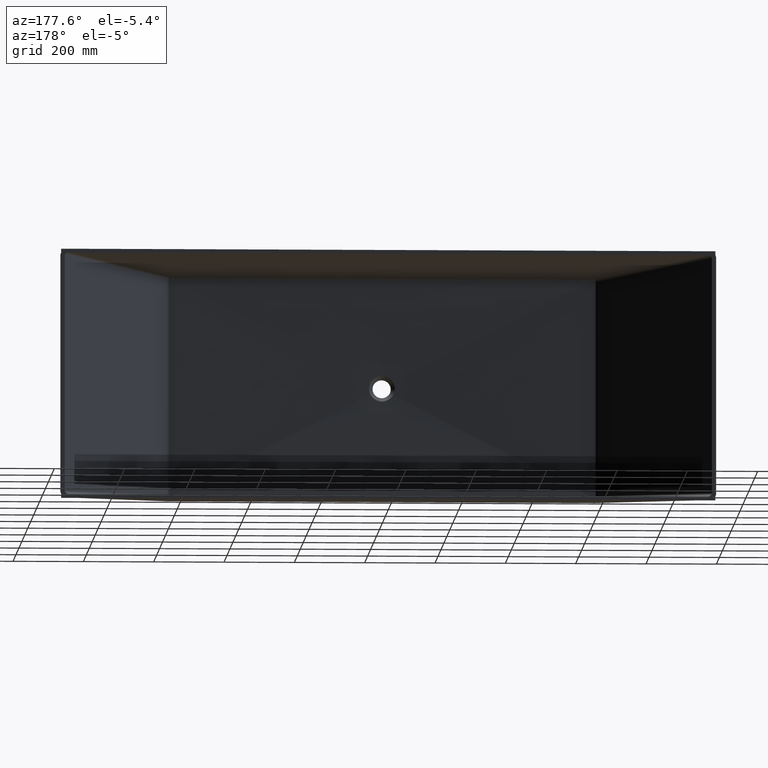
[diagram: clean part render]
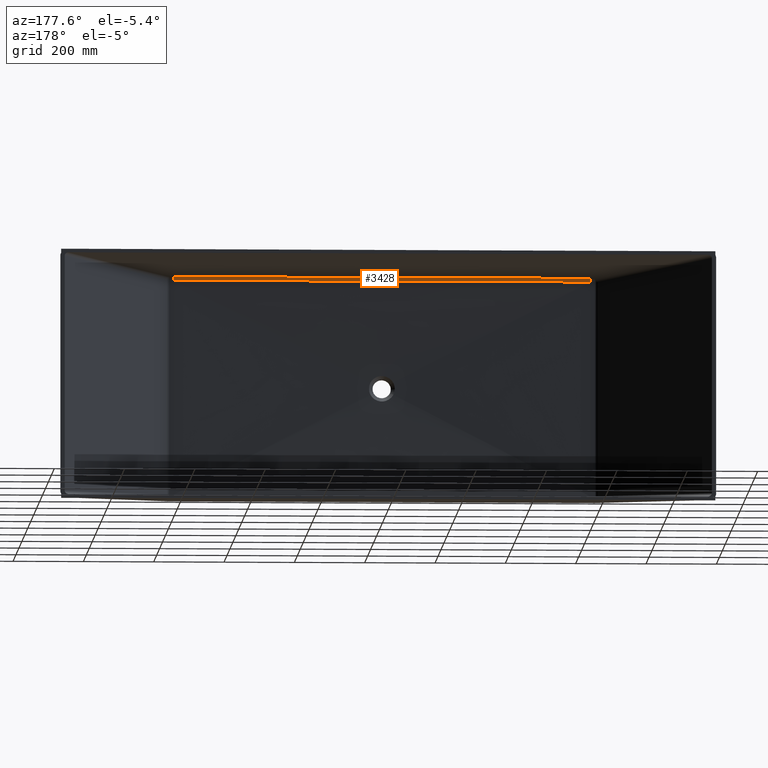
[diagram: same view with one face highlighted and labeled with its STEP entity id]
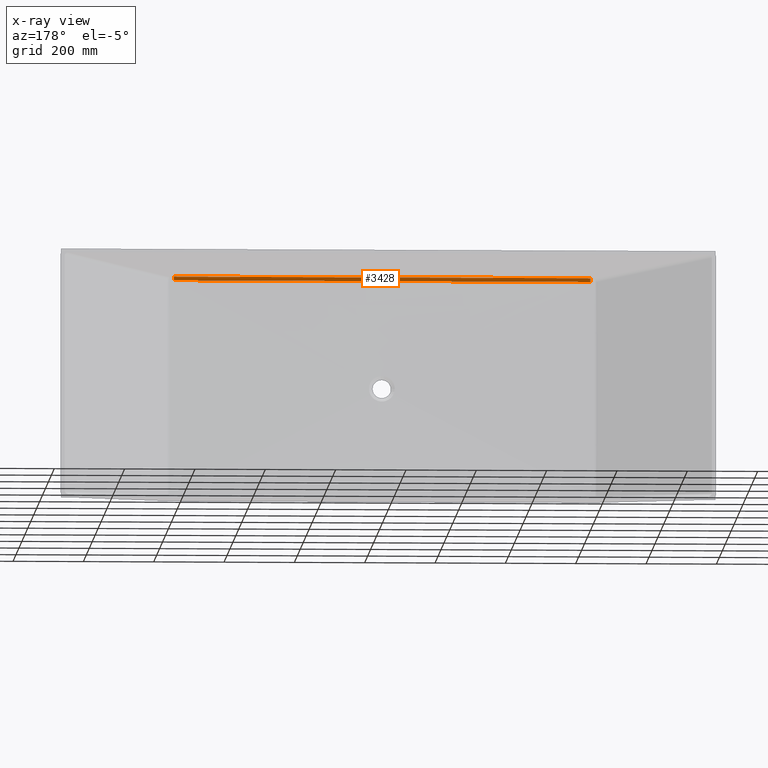
[diagram: x-ray of the same camera — body ghosted, the highlighted face saturated]
A machine part, auxiliary view. The second image highlights one B-rep face of the part: STEP entity #3428.
The next image is the same camera in x-ray: the body ghosted, the highlighted face saturated — about 0% of this face is hidden behind the body in this view.
In plain terms, the highlighted face is a freeform B-spline surface patch.
Its self-contained STEP definition (entity closure, byte-faithful):
#13 = CARTESIAN_POINT ( 'NONE',  ( 592.2875355145996500, -423.0502434397071700, 308.1545570712363000 ) ) ;
#41 = CARTESIAN_POINT ( 'NONE',  ( 599.3992717241939100, -414.0692122107927300, 315.6333892049083300 ) ) ;
#43 = CARTESIAN_POINT ( 'NONE',  ( 592.2902253384936600, -423.2501045533896300, 307.2687150884824000 ) ) ;
#49 = CARTESIAN_POINT ( 'NONE',  ( 599.3996350662886200, -423.0007088836803200, 314.9999497245617000 ) ) ;
#53 = CARTESIAN_POINT ( 'NONE',  ( 599.3996750502633400, -423.3539829347628800, 306.0529906898778400 ) ) ;
#63 = CARTESIAN_POINT ( 'NONE',  ( 399.5995145476632000, -414.0772995840378600, 315.6328156323377200 ) ) ;
#68 = CARTESIAN_POINT ( 'NONE',  ( 399.6820283183525400, -423.0005159665332100, 314.9999633333082400 ) ) ;
#77 = CARTESIAN_POINT ( 'NONE',  ( 399.5999914207068900, -423.3617067454130700, 306.0616245431969600 ) ) ;
#78 = CARTESIAN_POINT ( 'NONE',  ( 592.2914806022187100, -423.3300100390993600, 306.6668858443011300 ) ) ;
#82 = CARTESIAN_POINT ( 'NONE',  ( 199.7997573688288100, -414.0867623741400500, 315.6321445124722800 ) ) ;
#97 = CARTESIAN_POINT ( 'NONE',  ( 199.8000121801432300, -423.0000000110911200, 314.9999999889088800 ) ) ;
#100 = CARTESIAN_POINT ( 'NONE',  ( 199.8000407358737800, -423.3707100165772800, 306.0720671007626900 ) ) ;
#111 = CARTESIAN_POINT ( 'NONE',  ( -199.7997573688289800, -414.0867623623217400, 315.6321445133104900 ) ) ;
#112 = CARTESIAN_POINT ( 'NONE',  ( 592.2921744901834700, -423.3542579157514200, 306.0532980438658800 ) ) ;
#115 = CARTESIAN_POINT ( 'NONE',  ( -199.8000121801433700, -422.9999999889088300, 315.0000000110911200 ) ) ;
#128 = CARTESIAN_POINT ( 'NONE',  ( -199.8000407358739500, -423.3707100165581800, 306.0720671012224400 ) ) ;
#136 = CARTESIAN_POINT ( 'NONE',  ( -399.5995145476206900, -414.0772995631735400, 315.6328156338173000 ) ) ;
#151 = CARTESIAN_POINT ( 'NONE',  ( -399.6820283183100700, -423.0005159942497200, 314.9999634109138400 ) ) ;
#159 = CARTESIAN_POINT ( 'NONE',  ( -399.5999914206659600, -423.3617067449502000, 306.0616245549201200 ) ) ;
#186 = CARTESIAN_POINT ( 'NONE',  ( -599.3992717241740100, -414.0692122107927300, 315.6333892049081600 ) ) ;
#203 = ORIENTED_EDGE ( 'NONE', *, *, #1086, .T. ) ;
#211 = CARTESIAN_POINT ( 'NONE',  ( -599.3996750502434500, -423.3539829347628800, 306.0529906898777300 ) ) ;
#351 = CARTESIAN_POINT ( 'NONE',  ( 592.2865035446360500, -422.9702026066239000, 308.4470024458679500 ) ) ;
#827 = CARTESIAN_POINT ( 'NONE',  ( -599.3996350662686200, -423.0007088836800300, 314.9999497245614700 ) ) ;
#1086 = EDGE_CURVE ( 'NONE', #7006, #5356, #5069, .T. ) ;
#1122 = CARTESIAN_POINT ( 'NONE',  ( 592.1901443795183000, -414.0695042601208200, 315.6333684921899000 ) ) ;
#1248 = CARTESIAN_POINT ( 'NONE',  ( 592.2921744901834700, -423.3542579157514200, 306.0532980438658800 ) ) ;
#1275 = CARTESIAN_POINT ( 'NONE',  ( -394.8614497871554900, -423.3619037750318600, 306.0618196741922900 ) ) ;
#1285 = CARTESIAN_POINT ( 'NONE',  ( 394.8614497685199500, -423.3619037750318100, 306.0618196741927500 ) ) ;
#1315 = CARTESIAN_POINT ( 'NONE',  ( 505.0149746602886600, -414.0730390188823000, 315.6331178000792200 ) ) ;
#1381 = CARTESIAN_POINT ( 'NONE',  ( 417.8398049493720200, -414.0767967430808200, 315.6328512948169300 ) ) ;
#1414 = CARTESIAN_POINT ( 'NONE',  ( 330.6646352156019500, -414.0799546041483300, 315.6326273330390700 ) ) ;
#1523 = EDGE_LOOP ( 'NONE', ( #1937, #203, #2146, #8145 ) ) ;
#1586 = CARTESIAN_POINT ( 'NONE',  ( -592.2921744901636900, -423.3542579157514200, 306.0532980438658200 ) ) ;
#1699 = CARTESIAN_POINT ( 'NONE',  ( -592.1901443795268300, -414.0695042601208200, 315.6333684921899600 ) ) ;
#1758 = CARTESIAN_POINT ( 'NONE',  ( 592.2921744901834700, -423.3542579157514200, 306.0532980438658800 ) ) ;
#1799 = CARTESIAN_POINT ( 'NONE',  ( -220.4430901924269800, -414.0839473044420600, 315.6323441628054500 ) ) ;
#1865 = CARTESIAN_POINT ( 'NONE',  ( 220.4430901929374600, -414.0839473044422300, 315.6323441628055100 ) ) ;
#1906 = CARTESIAN_POINT ( 'NONE',  ( -5.912365160427438000E-014, -414.0867623682308900, 315.6321445128913300 ) ) ;
#1924 = CARTESIAN_POINT ( 'NONE',  ( 110.2215450953446200, -414.0867623682308900, 315.6321445128913300 ) ) ;
#1937 = ORIENTED_EDGE ( 'NONE', *, *, #7313, .F. ) ;
#1976 = CARTESIAN_POINT ( 'NONE',  ( -110.2215450950894400, -414.0867623682308900, 315.6321445128913300 ) ) ;
#2146 = ORIENTED_EDGE ( 'NONE', *, *, #3367, .T. ) ;
#2243 = CARTESIAN_POINT ( 'NONE',  ( -2.029260648406250300E-007, -423.3795162581031400, 306.0823145277922200 ) ) ;
#2952 = VERTEX_POINT ( 'NONE', #5053 ) ;
#3179 = CARTESIAN_POINT ( 'NONE',  ( 592.2326499016628500, -418.1377231491702000, 314.4653617295544400 ) ) ;
#3367 = EDGE_CURVE ( 'NONE', #5356, #7019, #8213, .T. ) ;
#3428 = ADVANCED_FACE ( 'NONE', ( #8181 ), #6530, .F. ) ;
#3619 = CARTESIAN_POINT ( 'NONE',  ( -592.1901443795268300, -414.0695042601208200, 315.6333684921899600 ) ) ;
#3629 = CARTESIAN_POINT ( 'NONE',  ( -592.1932513826318400, -414.3714129198076500, 315.6119565305105000 ) ) ;
#3632 = CARTESIAN_POINT ( 'NONE',  ( -592.1964223851206300, -414.6785498463817100, 315.5761338879818800 ) ) ;
#3662 = CARTESIAN_POINT ( 'NONE',  ( -592.2026944403894500, -415.2840274289018800, 315.4767821584208000 ) ) ;
#3676 = CARTESIAN_POINT ( 'NONE',  ( -592.2058118902488100, -415.5839654798277300, 315.4131966506925600 ) ) ;
#3687 = CARTESIAN_POINT ( 'NONE',  ( -592.2150186727524200, -416.4668141934828300, 315.1836705945477200 ) ) ;
#3690 = CARTESIAN_POINT ( 'NONE',  ( -592.2209998810462800, -417.0364005711500700, 314.9787424199222400 ) ) ;
#3704 = CARTESIAN_POINT ( 'NONE',  ( -592.2326499016737700, -418.1377231491106300, 314.4653617295871300 ) ) ;
#3710 = CARTESIAN_POINT ( 'NONE',  ( -592.2383481865152800, -418.6721172102338600, 314.1538014906723800 ) ) ;
#3727 = CARTESIAN_POINT ( 'NONE',  ( -592.2489784577682000, -419.6603088821092900, 313.4494574035249500 ) ) ;
#3730 = CARTESIAN_POINT ( 'NONE',  ( -592.2539675133572200, -420.1195520875036800, 313.0548724058476800 ) ) ;
#3740 = CARTESIAN_POINT ( 'NONE',  ( -592.2609559643448200, -420.7554952446343500, 312.3985933557629600 ) ) ;
#3756 = CARTESIAN_POINT ( 'NONE',  ( -592.2632127800677600, -420.9595248485930500, 312.1677814153020400 ) ) ;
#3758 = CARTESIAN_POINT ( 'NONE',  ( -592.2674798874168100, -421.3425135798427700, 311.6921262670946900 ) ) ;
#3768 = CARTESIAN_POINT ( 'NONE',  ( -592.2694955218436200, -421.5219739482204800, 311.4469935517062700 ) ) ;
#3773 = CARTESIAN_POINT ( 'NONE',  ( -592.2751969869987100, -422.0251020910339400, 310.6901953781729200 ) ) ;
#3788 = CARTESIAN_POINT ( 'NONE',  ( -592.2785402475810800, -422.3138095921791500, 310.1573075671818200 ) ) ;
#3794 = CARTESIAN_POINT ( 'NONE',  ( -592.2828495215617300, -422.6748604965110900, 309.3142625482308300 ) ) ;
#3804 = CARTESIAN_POINT ( 'NONE',  ( -592.2841644621506700, -422.7828419477410800, 309.0261300735248300 ) ) ;
#3809 = CARTESIAN_POINT ( 'NONE',  ( -592.2865035446255900, -422.9702026066196400, 308.4470024458830700 ) ) ;
#3824 = CARTESIAN_POINT ( 'NONE',  ( -592.2875355145962400, -423.0502434397040500, 308.1545570712497700 ) ) ;
#3841 = CARTESIAN_POINT ( 'NONE',  ( -592.2902253384896800, -423.2501045533887200, 307.2687150884903500 ) ) ;
#3858 = CARTESIAN_POINT ( 'NONE',  ( -592.2921744901636900, -423.3542579157514200, 306.0532980438658200 ) ) ;
#3897 = CARTESIAN_POINT ( 'NONE',  ( -592.2914806021997300, -423.3300100390986800, 306.6668858443050600 ) ) ;
#4485 = CARTESIAN_POINT ( 'NONE',  ( -330.6646352148362100, -414.0799546041485500, 315.6326273330390700 ) ) ;
#4539 = CARTESIAN_POINT ( 'NONE',  ( 592.2841644621619300, -422.7828419477476100, 309.0261300735061200 ) ) ;
#4544 = CARTESIAN_POINT ( 'NONE',  ( -417.8398049488643000, -414.0767967430814500, 315.6328512948168200 ) ) ;
#4888 = CARTESIAN_POINT ( 'NONE',  ( 592.2383481865263100, -418.6721172102876400, 314.1538014906384400 ) ) ;
#4951 = CARTESIAN_POINT ( 'NONE',  ( 592.2489784577785500, -419.6603088821519800, 313.4494574034899900 ) ) ;
#5053 = CARTESIAN_POINT ( 'NONE',  ( 592.1901443795183000, -414.0695042601208200, 315.6333684921899000 ) ) ;
#5069 = B_SPLINE_CURVE_WITH_KNOTS ( 'NONE', 3,
 ( #1248, #1285, #2243, #1275, #6603 ),
 .UNSPECIFIED., .F., .F.,
 ( 4, 1, 4 ),
 ( 0.0003824342042895901500, 0.5926746093651379400, 1.184966784525986100 ),
 .UNSPECIFIED. ) ;
#5356 = VERTEX_POINT ( 'NONE', #1586 ) ;
#5676 = CARTESIAN_POINT ( 'NONE',  ( -505.0149746600390600, -414.0730390188825300, 315.6331178000792200 ) ) ;
#5830 = CARTESIAN_POINT ( 'NONE',  ( -592.1901443795268300, -414.0695042601208200, 315.6333684921899600 ) ) ;
#6165 = CARTESIAN_POINT ( 'NONE',  ( 592.2609559643694900, -420.7554952446650400, 312.3985933557290200 ) ) ;
#6530 =( BOUNDED_SURFACE ( )  B_SPLINE_SURFACE ( 3, 2, ( 
 ( #211, #827, #186 ),
 ( #159, #151, #136 ),
 ( #128, #115, #111 ),
 ( #100, #97, #82 ),
 ( #77, #68, #63 ),
 ( #53, #49, #41 ) ),
 .UNSPECIFIED., .F., .F., .T. ) 
 B_SPLINE_SURFACE_WITH_KNOTS ( ( 4, 2, 4 ),
 ( 3, 3 ),
 ( 1.384588539373267100, 1.983987811413722400, 2.583387083454177400 ),
 ( 0.0000000000000000000, 1.000000000000000000 ),
 .UNSPECIFIED. ) 
 GEOMETRIC_REPRESENTATION_ITEM ( )  RATIONAL_B_SPLINE_SURFACE ( (
 ( 1.000000000000000000, 0.7449983166656125600, 1.000000000000000000),
 ( 1.000000000000000000, 0.7453045135937623700, 1.000000000000000000),
 ( 1.000000000000000000, 0.7456762634371616500, 1.000000000000000000),
 ( 1.000000000000000000, 0.7456762634371616500, 1.000000000000000000),
 ( 1.000000000000000000, 0.7453045135937640400, 1.000000000000000000),
 ( 1.000000000000000000, 0.7449983166656089000, 1.000000000000000000) ) ) 
 REPRESENTATION_ITEM ( '' )  SURFACE ( )  );
#6603 = CARTESIAN_POINT ( 'NONE',  ( -592.2921744901636900, -423.3542579157514200, 306.0532980438658200 ) ) ;
#6609 = CARTESIAN_POINT ( 'NONE',  ( 592.2539675133826900, -420.1195520875413600, 313.0548724058128300 ) ) ;
#6635 = B_SPLINE_CURVE_WITH_KNOTS ( 'NONE', 3,
 ( #112, #78, #43, #13, #351, #4539, #9512, #7967, #7941, #8072, #6892, #6672, #6165, #6609, #4951, #4888, #3179, #9536, #9441, #9389, #9354, #9318, #9263, #8955 ),
 .UNSPECIFIED., .F., .F.,
 ( 4, 2, 2, 2, 2, 2, 2, 2, 2, 2, 2, 4 ),
 ( 0.0000000000000000000, 0.001816053259364444200, 0.002724079889046584100, 0.003632106518728724400, 0.005448159778093157800, 0.006356186407775328900, 0.007264213037457499200, 0.009080266296821605500, 0.01089631955618571400, 0.01271237281554982000, 0.01362039944523185300, 0.01452842607491388800 ),
 .UNSPECIFIED. ) ;
#6672 = CARTESIAN_POINT ( 'NONE',  ( 592.2632127800700300, -420.9595248486217000, 312.1677814152686200 ) ) ;
#6892 = CARTESIAN_POINT ( 'NONE',  ( 592.2674798874192000, -421.3425135798667000, 311.6921262670629200 ) ) ;
#7006 = VERTEX_POINT ( 'NONE', #1758 ) ;
#7019 = VERTEX_POINT ( 'NONE', #1699 ) ;
#7313 = EDGE_CURVE ( 'NONE', #7006, #2952, #6635, .T. ) ;
#7737 = B_SPLINE_CURVE_WITH_KNOTS ( 'NONE', 3,
 ( #5830, #5676, #4544, #4485, #1799, #1976, #1906, #1924, #1865, #1414, #1381, #1315, #1122 ),
 .UNSPECIFIED., .F., .F.,
 ( 4, 3, 3, 3, 4 ),
 ( 0.0000000000000000000, 0.2615255093745343900, 0.5921901446981101500, 0.9228547800224518000, 1.184380289396211900 ),
 .UNSPECIFIED. ) ;
#7941 = CARTESIAN_POINT ( 'NONE',  ( 592.2751969870000700, -422.0251020910495800, 310.6901953781453500 ) ) ;
#7967 = CARTESIAN_POINT ( 'NONE',  ( 592.2785402475886900, -422.3138095921913800, 310.1573075671566900 ) ) ;
#8072 = CARTESIAN_POINT ( 'NONE',  ( 592.2694955218447600, -421.5219739482423600, 311.4469935516755800 ) ) ;
#8092 = EDGE_CURVE ( 'NONE', #7019, #2952, #7737, .T. ) ;
#8145 = ORIENTED_EDGE ( 'NONE', *, *, #8092, .T. ) ;
#8181 = FACE_OUTER_BOUND ( 'NONE', #1523, .T. ) ;
#8213 = B_SPLINE_CURVE_WITH_KNOTS ( 'NONE', 3,
 ( #3858, #3897, #3841, #3824, #3809, #3804, #3794, #3788, #3773, #3768, #3758, #3756, #3740, #3730, #3727, #3710, #3704, #3690, #3687, #3676, #3662, #3632, #3629, #3619 ),
 .UNSPECIFIED., .F., .F.,
 ( 4, 2, 2, 2, 2, 2, 2, 2, 2, 2, 2, 4 ),
 ( 5.551115123125782700E-017, 0.001816053259376083300, 0.002724079889064015500, 0.003632106518751947600, 0.005448159778127809700, 0.006356186407815855500, 0.007264213037503902200, 0.009080266296879991100, 0.01089631955625608100, 0.01271237281563216900, 0.01362039944532011100, 0.01452842607500805200 ),
 .UNSPECIFIED. ) ;
#8955 = CARTESIAN_POINT ( 'NONE',  ( 592.1901443795183000, -414.0695042601208200, 315.6333684921899000 ) ) ;
#9263 = CARTESIAN_POINT ( 'NONE',  ( 592.1932513815912700, -414.3714129199024700, 315.6119565305009500 ) ) ;
#9318 = CARTESIAN_POINT ( 'NONE',  ( 592.1964223852545500, -414.6785498464718100, 315.5761338879698900 ) ) ;
#9354 = CARTESIAN_POINT ( 'NONE',  ( 592.2026944404594800, -415.2840274289874900, 315.4767821584038100 ) ) ;
#9389 = CARTESIAN_POINT ( 'NONE',  ( 592.2058118902746200, -415.5839654799110600, 315.4131966506734000 ) ) ;
#9441 = CARTESIAN_POINT ( 'NONE',  ( 592.2150186727656100, -416.4668141935579200, 315.1836705945229900 ) ) ;
#9512 = CARTESIAN_POINT ( 'NONE',  ( 592.2828495215692300, -422.6748604965189300, 309.3142625482103700 ) ) ;
#9536 = CARTESIAN_POINT ( 'NONE',  ( 592.2209998810383200, -417.0364005712198700, 314.9787424198943900 ) ) ;